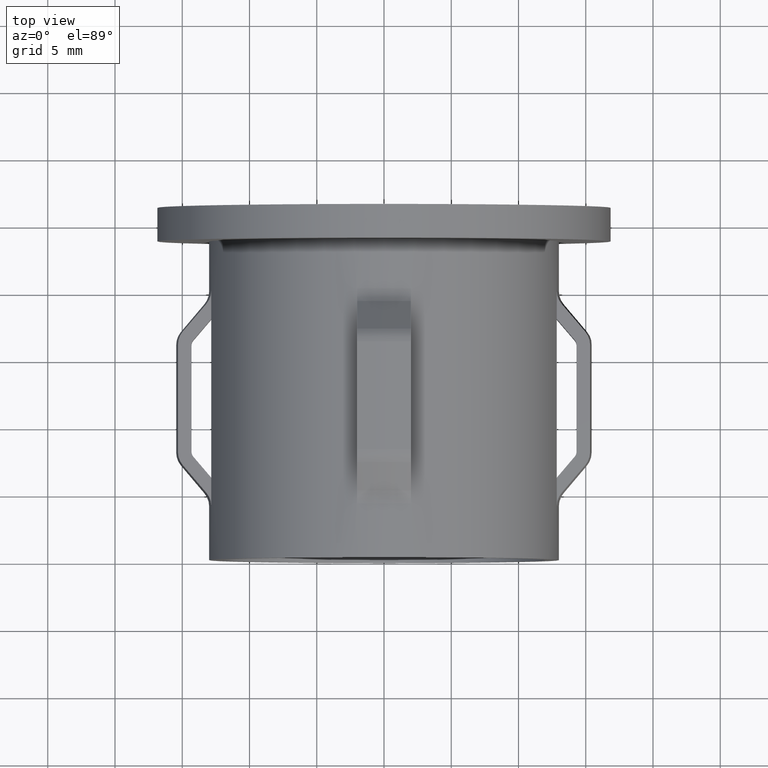
[diagram: clean part render]
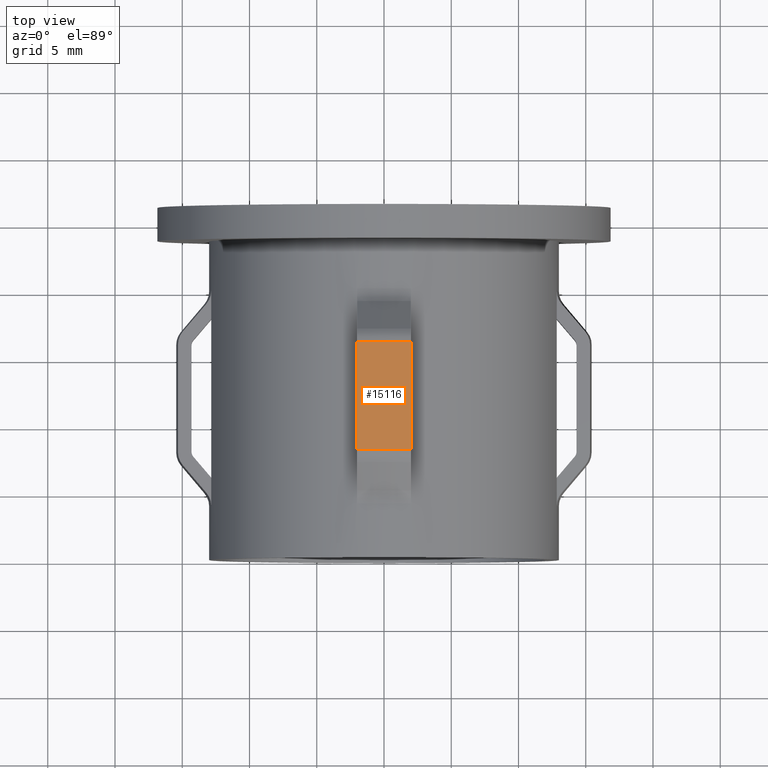
[diagram: same view with one face highlighted and labeled with its STEP entity id]
A machine part, top view. The second image highlights one B-rep face of the part: STEP entity #15116.
In plain terms, the highlighted cylindrical surface (partial cylindrical patch) has radius 15.45 mm, axis along (0, 1, -0).
Its self-contained STEP definition (entity closure, byte-faithful):
#453 = EDGE_LOOP ( 'NONE', ( #3962, #8488, #8080, #8816 ) ) ;
#1802 = EDGE_CURVE ( 'NONE', #12370, #4673, #3833, .T. ) ;
#2091 = CYLINDRICAL_SURFACE ( 'NONE', #10880, 15.45000000000000100 ) ;
#2310 = DIRECTION ( 'NONE',  ( -1.000000000000000000, 0.0000000000000000000, 0.0000000000000000000 ) ) ;
#2360 = VECTOR ( 'NONE', #7791, 1000.000000000000000 ) ;
#3454 = DIRECTION ( 'NONE',  ( 7.347880794884120200E-017, 1.000000000000000000, -0.0000000000000000000 ) ) ;
#3785 = CARTESIAN_POINT ( 'NONE',  ( -1.999999999999995300, 7.999999999999994700, 15.32000326370722500 ) ) ;
#3833 = CIRCLE ( 'NONE', #8297, 15.44999999999999900 ) ;
#3962 = ORIENTED_EDGE ( 'NONE', *, *, #4624, .T. ) ;
#4624 = EDGE_CURVE ( 'NONE', #12370, #6703, #13623, .T. ) ;
#4673 = VERTEX_POINT ( 'NONE', #10307 ) ;
#4997 = CARTESIAN_POINT ( 'NONE',  ( 3.673940397442062800E-016, 26.19999999999999900, 0.0000000000000000000 ) ) ;
#6114 = DIRECTION ( 'NONE',  ( 7.347880794884120200E-017, 1.000000000000000000, -0.0000000000000000000 ) ) ;
#6403 = DIRECTION ( 'NONE',  ( -0.0000000000000000000, -1.000000000000000000, -0.0000000000000000000 ) ) ;
#6659 = FACE_OUTER_BOUND ( 'NONE', #453, .T. ) ;
#6703 = VERTEX_POINT ( 'NONE', #3785 ) ;
#7225 = DIRECTION ( 'NONE',  ( -1.000000000000000000, 1.122798366328030400E-016, 0.0000000000000000000 ) ) ;
#7791 = DIRECTION ( 'NONE',  ( -0.0000000000000000000, -1.000000000000000000, -0.0000000000000000000 ) ) ;
#8080 = ORIENTED_EDGE ( 'NONE', *, *, #13903, .F. ) ;
#8297 = AXIS2_PLACEMENT_3D ( 'NONE', #10203, #6114, #16986 ) ;
#8488 = ORIENTED_EDGE ( 'NONE', *, *, #9574, .T. ) ;
#8816 = ORIENTED_EDGE ( 'NONE', *, *, #1802, .F. ) ;
#9574 = EDGE_CURVE ( 'NONE', #6703, #16785, #11432, .T. ) ;
#9984 = VECTOR ( 'NONE', #6403, 1000.000000000000000 ) ;
#10203 = CARTESIAN_POINT ( 'NONE',  ( -3.820898013339736000E-016, 16.00000000000000000, 0.0000000000000000000 ) ) ;
#10307 = CARTESIAN_POINT ( 'NONE',  ( 2.000000000000005300, 16.00000000000000000, 15.32000326370722700 ) ) ;
#10598 = CARTESIAN_POINT ( 'NONE',  ( 2.000000000000005300, 7.999999999999994700, 15.32000326370722700 ) ) ;
#10880 = AXIS2_PLACEMENT_3D ( 'NONE', #4997, #3454, #2310 ) ;
#11432 = CIRCLE ( 'NONE', #12694, 15.45000000000000100 ) ;
#12370 = VERTEX_POINT ( 'NONE', #13400 ) ;
#12694 = AXIS2_PLACEMENT_3D ( 'NONE', #13962, #12722, #7225 ) ;
#12722 = DIRECTION ( 'NONE',  ( 7.347880794884120200E-017, 1.000000000000000000, -0.0000000000000000000 ) ) ;
#13280 = CARTESIAN_POINT ( 'NONE',  ( 2.000000000000005300, 20.00000000000000000, 15.32000326370722700 ) ) ;
#13400 = CARTESIAN_POINT ( 'NONE',  ( -1.999999999999995300, 16.00000000000000000, 15.32000326370722500 ) ) ;
#13623 = LINE ( 'NONE', #17227, #9984 ) ;
#13903 = EDGE_CURVE ( 'NONE', #4673, #16785, #16447, .T. ) ;
#13962 = CARTESIAN_POINT ( 'NONE',  ( -9.699202649247035600E-016, 7.999999999999996400, 0.0000000000000000000 ) ) ;
#15116 = ADVANCED_FACE ( 'NONE', ( #6659 ), #2091, .T. ) ;
#16447 = LINE ( 'NONE', #13280, #2360 ) ;
#16785 = VERTEX_POINT ( 'NONE', #10598 ) ;
#16986 = DIRECTION ( 'NONE',  ( -1.000000000000000000, 0.0000000000000000000, 0.0000000000000000000 ) ) ;
#17227 = CARTESIAN_POINT ( 'NONE',  ( -1.999999999999995300, 20.00000000000000000, 15.32000326370722500 ) ) ;